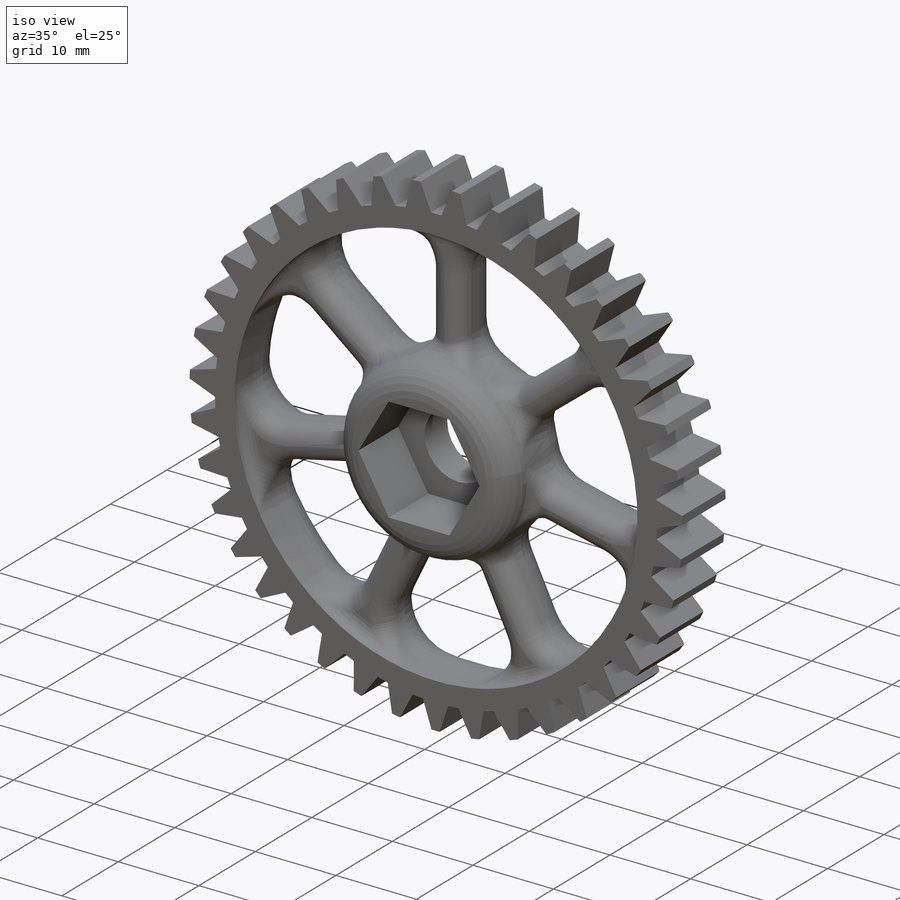
[diagram: iso view]
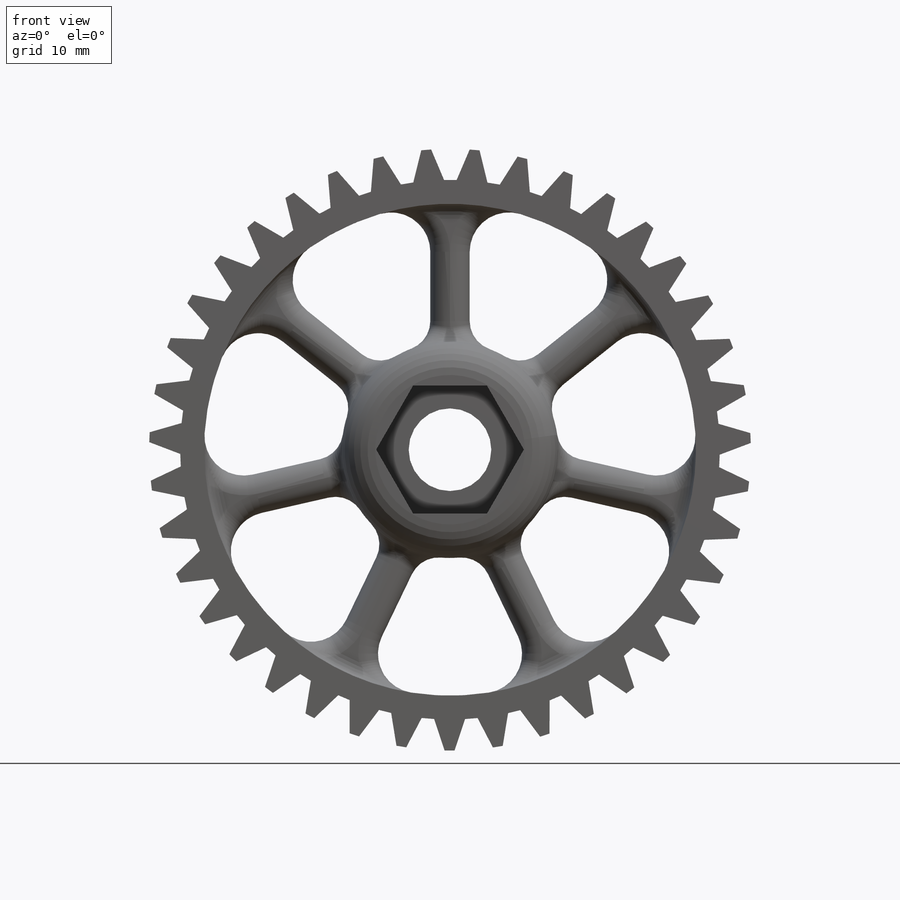
[diagram: front view]
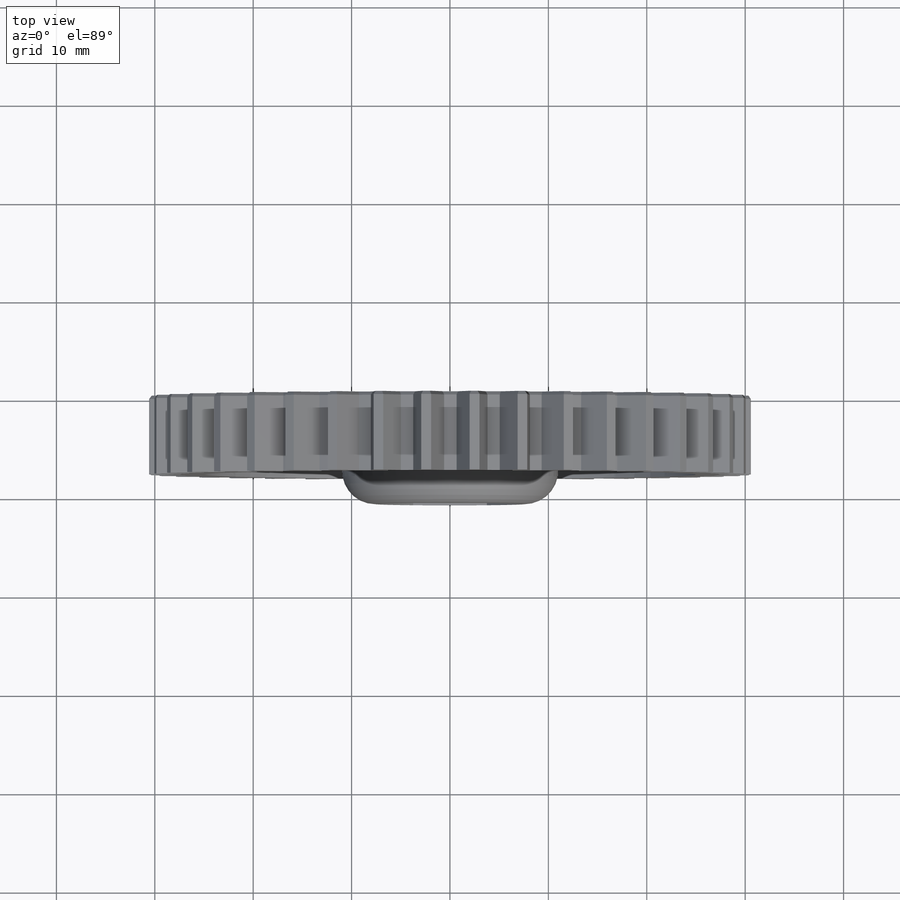
[diagram: top view]
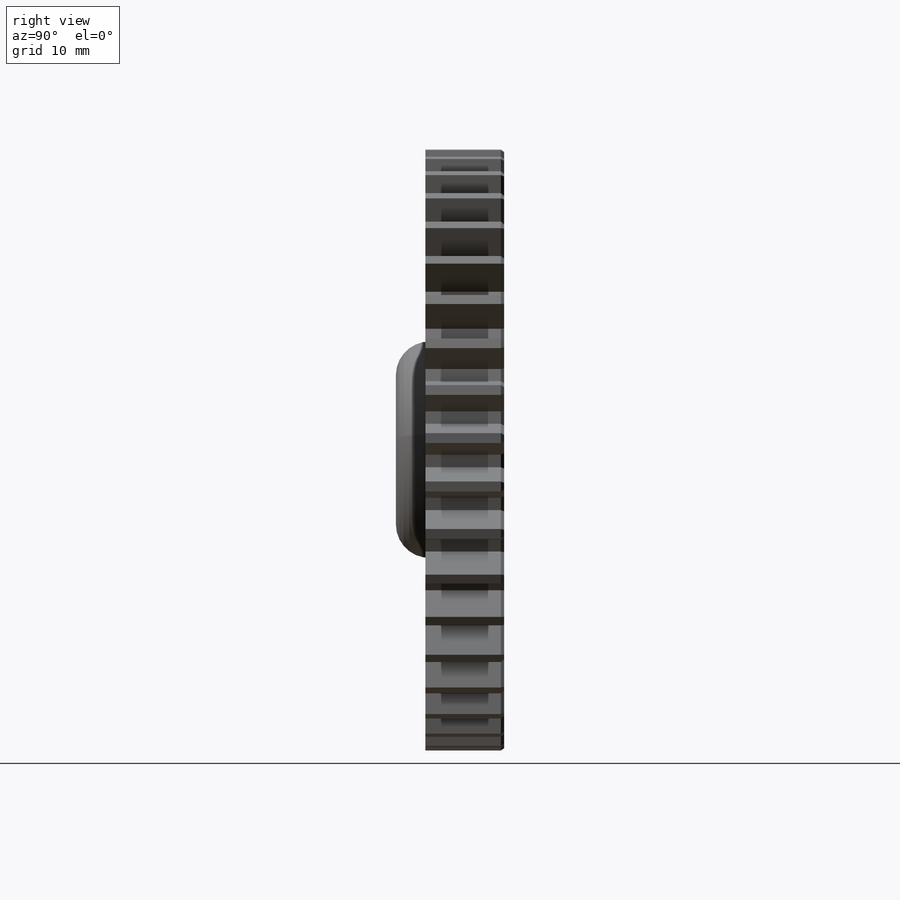
[diagram: right view]
SOLIDWORKS PART (.sldprt)
format: sldprt  version: not decoded by parser v0  size: 1,874,432 bytes
history: native  units: mm
features: sketch x7, fillet x6, extrude x4, cut_extrude x3, chamfer x2, material x1 (+11 scaffold rows collapsed)
feature tree (34):
  scaffold x11  (default folders/planes/origin — collapsed)
  material  "Material <not specified>"
  sketch  "Sketch5"
  extrude  "Boss-Extrude3"  Depth=5mm
  sketch  "Sketch6"  dims[D1=12.5mm]
  extrude  "Boss-Extrude4"  Depth=6mm
  sketch  "Sketch7"  dims[D1=4.4mm]
  cut_extrude  "Cut-Extrude3"  [1 undecoded]
  sketch  "Sketch8"
  cut_extrude  "Cut-Extrude4"  Depth=7mm
  sketch  "Sketch9"  dims[D2=25.5mm D1=0.0mm]
  extrude  "Boss-Extrude5"  Depth=3mm
  sketch  "Sketch10"  dims[c1.D2=~12.599059mm c2.D2=~0.378914deg c3.D2=~12.576562mm c4.D2=0.0deg c4.D3=4.0mm c5.D2=~14.108408mm c6.D2=~0.878295deg c6.D1=2.0mm c7.D2=2.0mm c7.D3=2.0mm c7.D1=2.0mm c8.D2=2.0mm c8.D3=7.0]
  extrude  "Boss-Extrude6"  Depth=1.5mm
  sketch  "Sketch11"  dims[c1.D1=~14.108408mm c2.D1=~51.428571deg c3.D1=~14.108408mm c4.D1=~51.428571deg c5.D1=~14.094942mm c6.D1=~51.428571deg c7.D1=0.0mm]
  cut_extrude  "Cut-Extrude5"  [1 undecoded]
  fillet  "Fillet7"  Radius=4mm
  fillet  "Fillet6"  Radius=3mm
  chamfer  "Chamfer1"  Distance=1.9mm Angle=35deg
  fillet  "Fillet20"  Radius=4mm
  fillet  "Fillet23"  Radius=3.4mm
  fillet  "Fillet24"  Radius=1.5mm
  fillet  "Fillet25"  Radius=2mm
  chamfer  "Chamfer2"  Distance=0.33mm Angle=35deg
decode coverage: 18 of 22 modeling features carry decoded parameters
note: ~ marks probable driven/reference dimensions
note: 2 parameter values undecoded
note: suppression state not decoded; provenance and decode notes live in map.json
